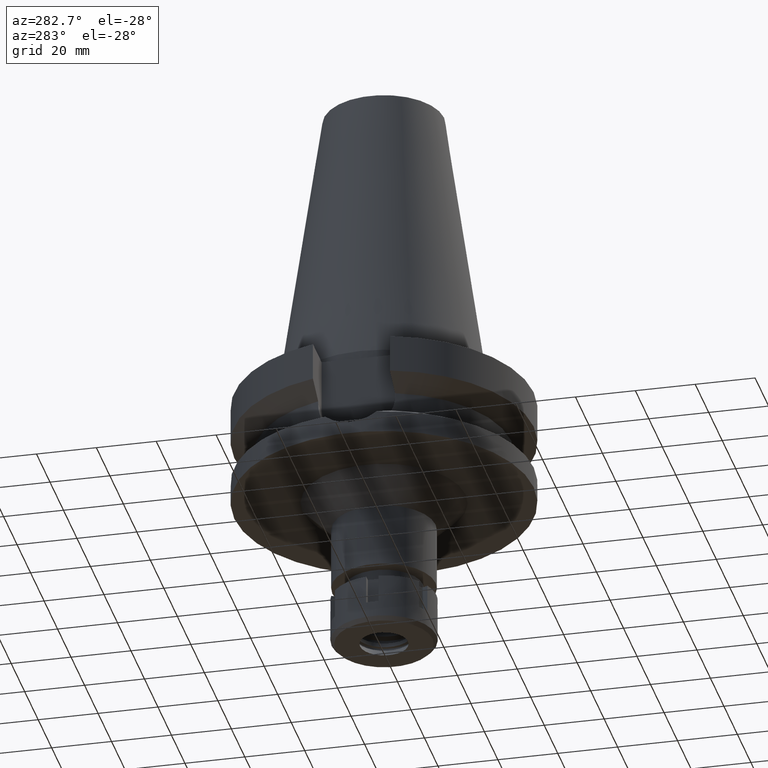
[diagram: clean part render]
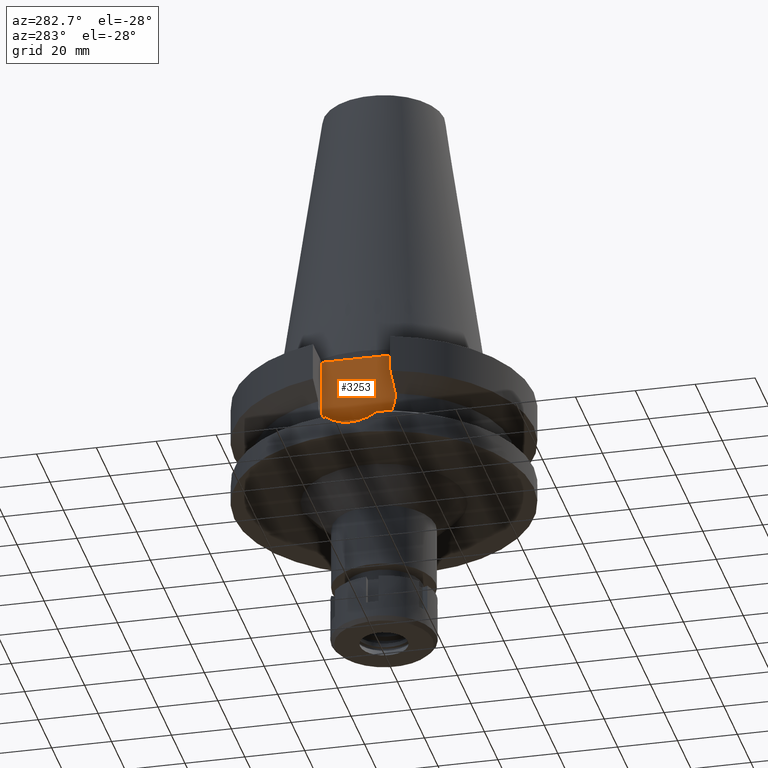
[diagram: same view with one face highlighted and labeled with its STEP entity id]
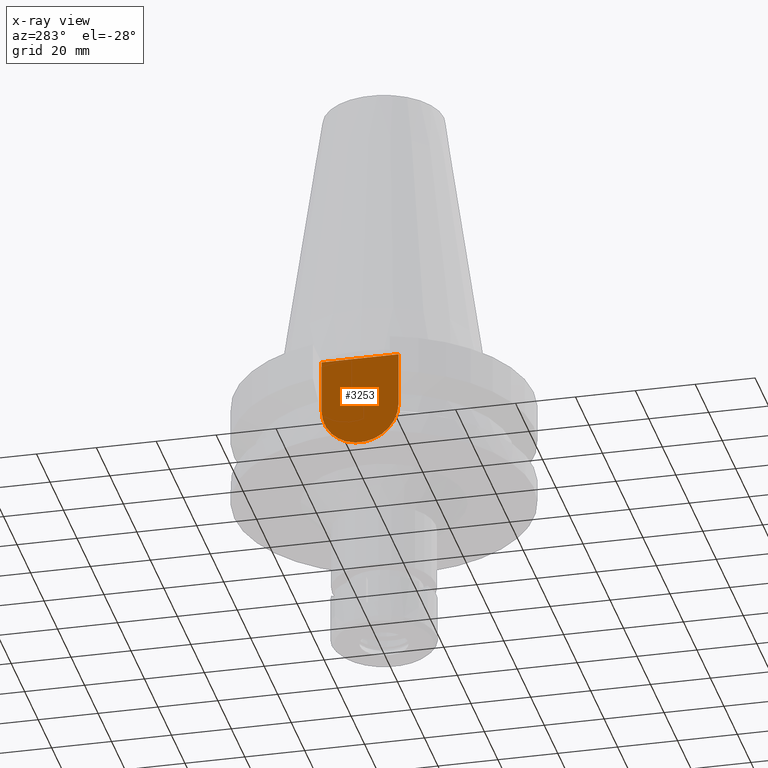
[diagram: x-ray of the same camera — body ghosted, the highlighted face saturated]
A machine part, auxiliary view. The second image highlights one B-rep face of the part: STEP entity #3253.
The next image is the same camera in x-ray: the body ghosted, the highlighted face saturated — about 0% of this face is hidden behind the body in this view.
In plain terms, the highlighted planar face has unit normal (-1, 0, 0).
Its self-contained STEP definition (entity closure, byte-faithful):
#122 = ORIENTED_EDGE ( 'NONE', *, *, #2063, .F. ) ;
#282 = EDGE_CURVE ( 'NONE', #964, #1642, #2619, .T. ) ;
#357 = DIRECTION ( 'NONE',  ( -1.000000000000000000, 0.0000000000000000000, 0.0000000000000000000 ) ) ;
#450 = LINE ( 'NONE', #745, #675 ) ;
#458 = VERTEX_POINT ( 'NONE', #2635 ) ;
#592 = DIRECTION ( 'NONE',  ( 0.0000000000000000000, 0.0000000000000000000, -1.000000000000000000 ) ) ;
#614 = PLANE ( 'NONE',  #1737 ) ;
#666 = EDGE_CURVE ( 'NONE', #964, #1757, #2432, .T. ) ;
#675 = VECTOR ( 'NONE', #2075, 1000.000000000000000 ) ;
#745 = CARTESIAN_POINT ( 'NONE',  ( -35.39999999999999858, 12.84999999999999964, -21.14999999999999858 ) ) ;
#815 = DIRECTION ( 'NONE',  ( 0.0000000000000000000, -1.000000000000000000, 1.133982661338924476E-14 ) ) ;
#939 = CARTESIAN_POINT ( 'NONE',  ( -35.39999999999999858, 12.84999999999999964, -3.000000000000000000 ) ) ;
#964 = VERTEX_POINT ( 'NONE', #2390 ) ;
#979 = EDGE_CURVE ( 'NONE', #458, #1757, #450, .T. ) ;
#1064 = CARTESIAN_POINT ( 'NONE',  ( -35.39999999999999858, 1.497743035356999952E-14, -21.14999999999999858 ) ) ;
#1083 = VECTOR ( 'NONE', #592, 1000.000000000000000 ) ;
#1160 = CARTESIAN_POINT ( 'NONE',  ( -35.39999999999999858, 2.015768631397000034E-14, 0.0000000000000000000 ) ) ;
#1336 = ORIENTED_EDGE ( 'NONE', *, *, #979, .F. ) ;
#1642 = VERTEX_POINT ( 'NONE', #2784 ) ;
#1737 = AXIS2_PLACEMENT_3D ( 'NONE', #1160, #357, #2833 ) ;
#1757 = VERTEX_POINT ( 'NONE', #939 ) ;
#1880 = CARTESIAN_POINT ( 'NONE',  ( -35.39999999999999858, -12.84999999999999964, -3.000000000000000000 ) ) ;
#2063 = EDGE_CURVE ( 'NONE', #1642, #458, #3095, .T. ) ;
#2075 = DIRECTION ( 'NONE',  ( 0.0000000000000000000, 0.0000000000000000000, 1.000000000000000000 ) ) ;
#2390 = CARTESIAN_POINT ( 'NONE',  ( -35.39999999999999858, -12.84999999999999964, -3.000000000000000000 ) ) ;
#2432 = LINE ( 'NONE', #1880, #2935 ) ;
#2619 = LINE ( 'NONE', #2864, #1083 ) ;
#2635 = CARTESIAN_POINT ( 'NONE',  ( -35.39999999999999858, 12.84999999999999964, -21.14999999999999858 ) ) ;
#2706 = AXIS2_PLACEMENT_3D ( 'NONE', #1064, #2792, #815 ) ;
#2784 = CARTESIAN_POINT ( 'NONE',  ( -35.39999999999999858, -12.84999999999999964, -21.14999999999999858 ) ) ;
#2792 = DIRECTION ( 'NONE',  ( 1.000000000000000000, 0.0000000000000000000, 0.0000000000000000000 ) ) ;
#2833 = DIRECTION ( 'NONE',  ( 0.0000000000000000000, 0.0000000000000000000, 1.000000000000000000 ) ) ;
#2849 = ORIENTED_EDGE ( 'NONE', *, *, #282, .F. ) ;
#2864 = CARTESIAN_POINT ( 'NONE',  ( -35.39999999999999858, -12.84999999999999964, -3.000000000000000000 ) ) ;
#2935 = VECTOR ( 'NONE', #3598, 1000.000000000000000 ) ;
#3095 = CIRCLE ( 'NONE', #2706, 12.84999999999999964 ) ;
#3098 = FACE_OUTER_BOUND ( 'NONE', #3262, .T. ) ;
#3253 = ADVANCED_FACE ( 'NONE', ( #3098 ), #614, .T. ) ;
#3262 = EDGE_LOOP ( 'NONE', ( #1336, #122, #2849, #3317 ) ) ;
#3317 = ORIENTED_EDGE ( 'NONE', *, *, #666, .T. ) ;
#3598 = DIRECTION ( 'NONE',  ( 0.0000000000000000000, 1.000000000000000000, 0.0000000000000000000 ) ) ;